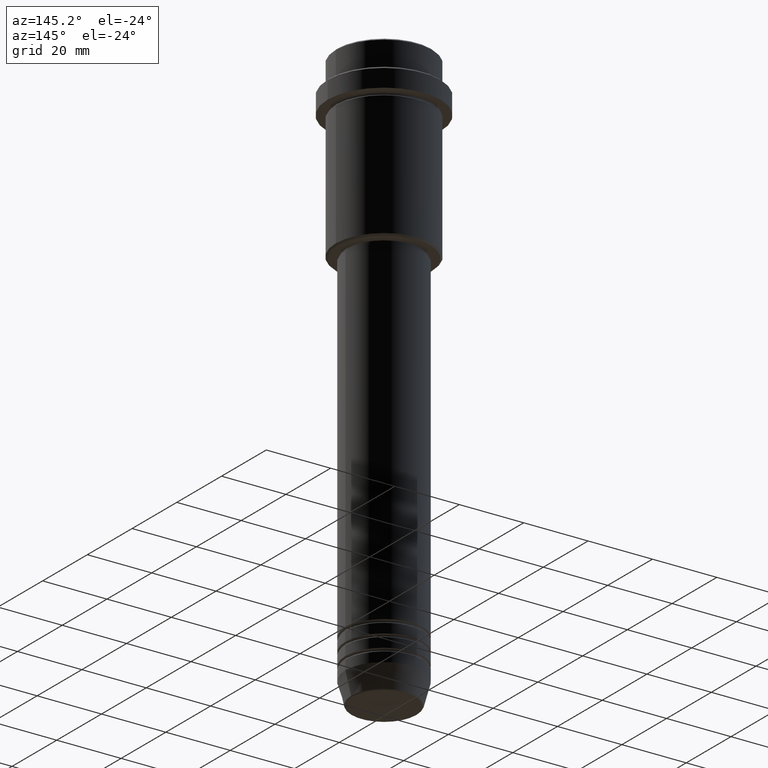
[diagram: clean part render]
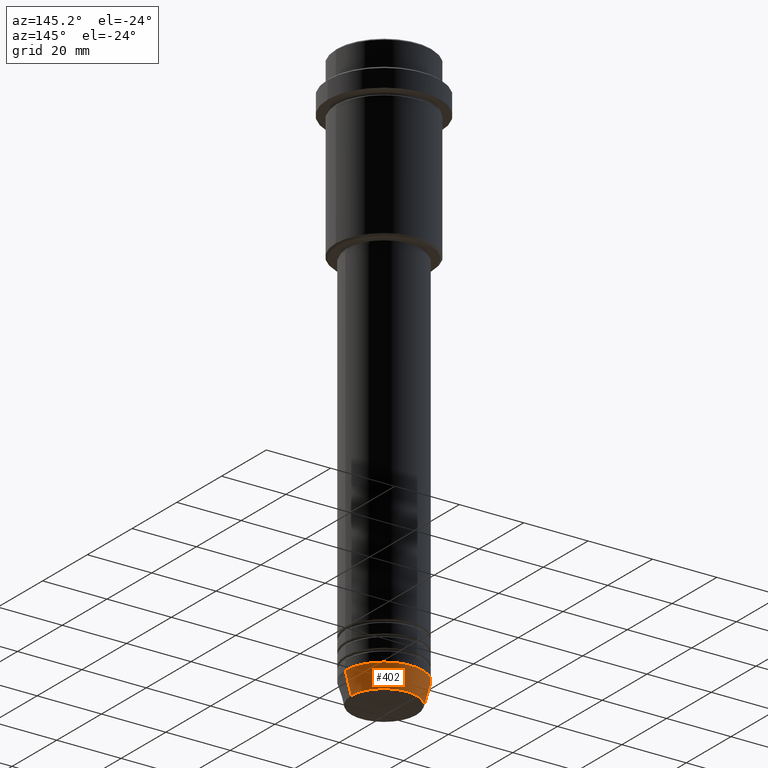
[diagram: same view with one face highlighted and labeled with its STEP entity id]
A machine part, auxiliary view. The second image highlights one B-rep face of the part: STEP entity #402.
In plain terms, the highlighted conical surface has half-angle 15 deg.
Its self-contained STEP definition (entity closure, byte-faithful):
#15 = DIRECTION ( 'NONE',  ( 1.000000000000000000, 0.000000000000000000, 0.000000000000000000 ) ) ;
#108 = LINE ( 'NONE', #983, #1020 ) ;
#127 = CARTESIAN_POINT ( 'NONE',  ( -12.00000000000000000, 1.469576158976823947E-15, -173.0000000000000000 ) ) ;
#183 = CIRCLE ( 'NONE', #370, 12.00000000000000000 ) ;
#221 = EDGE_LOOP ( 'NONE', ( #747, #731, #1158, #525 ) ) ;
#336 = DIRECTION ( 'NONE',  ( -0.000000000000000000, -0.000000000000000000, 1.000000000000000000 ) ) ;
#349 = CARTESIAN_POINT ( 'NONE',  ( 12.00000000000000000, 0.000000000000000000, -173.0000000000000000 ) ) ;
#370 = AXIS2_PLACEMENT_3D ( 'NONE', #562, #336, #15 ) ;
#373 = CARTESIAN_POINT ( 'NONE',  ( 10.22365507213719127, 0.000000000000000000, -179.6294095225512422 ) ) ;
#402 = ADVANCED_FACE ( 'NONE', ( #538 ), #1403, .T. ) ;
#412 = DIRECTION ( 'NONE',  ( -0.2588190451025213501, 3.169619151431772337E-17, 0.9659258262890680902 ) ) ;
#449 = EDGE_CURVE ( 'NONE', #1226, #545, #108, .T. ) ;
#525 = ORIENTED_EDGE ( 'NONE', *, *, #631, .F. ) ;
#538 = FACE_OUTER_BOUND ( 'NONE', #221, .T. ) ;
#541 = VERTEX_POINT ( 'NONE', #1028 ) ;
#543 = DIRECTION ( 'NONE',  ( 1.000000000000000000, 0.000000000000000000, 0.000000000000000000 ) ) ;
#545 = VERTEX_POINT ( 'NONE', #127 ) ;
#562 = CARTESIAN_POINT ( 'NONE',  ( 0.000000000000000000, 0.000000000000000000, -173.0000000000000000 ) ) ;
#565 = LINE ( 'NONE', #349, #1128 ) ;
#631 = EDGE_CURVE ( 'NONE', #1258, #541, #565, .T. ) ;
#652 = CARTESIAN_POINT ( 'NONE',  ( 0.000000000000000000, 0.000000000000000000, -173.0000000000000000 ) ) ;
#731 = ORIENTED_EDGE ( 'NONE', *, *, #449, .T. ) ;
#747 = ORIENTED_EDGE ( 'NONE', *, *, #1254, .T. ) ;
#796 = CARTESIAN_POINT ( 'NONE',  ( 0.000000000000000000, 0.000000000000000000, -179.6294095225512422 ) ) ;
#838 = EDGE_CURVE ( 'NONE', #541, #545, #183, .T. ) ;
#898 = CARTESIAN_POINT ( 'NONE',  ( -10.22365507213719127, 1.360806402472382744E-15, -179.6294095225512422 ) ) ;
#983 = CARTESIAN_POINT ( 'NONE',  ( -12.00000000000000000, 1.469576158976823947E-15, -173.0000000000000000 ) ) ;
#1020 = VECTOR ( 'NONE', #412, 1000.000000000000000 ) ;
#1028 = CARTESIAN_POINT ( 'NONE',  ( 12.00000000000000000, 0.000000000000000000, -173.0000000000000000 ) ) ;
#1033 = DIRECTION ( 'NONE',  ( 0.2588190451025213501, 0.000000000000000000, 0.9659258262890680902 ) ) ;
#1070 = CIRCLE ( 'NONE', #1160, 10.22365507213719127 ) ;
#1128 = VECTOR ( 'NONE', #1033, 1000.000000000000000 ) ;
#1158 = ORIENTED_EDGE ( 'NONE', *, *, #838, .F. ) ;
#1160 = AXIS2_PLACEMENT_3D ( 'NONE', #796, #1224, #1328 ) ;
#1224 = DIRECTION ( 'NONE',  ( -0.000000000000000000, -0.000000000000000000, 1.000000000000000000 ) ) ;
#1226 = VERTEX_POINT ( 'NONE', #898 ) ;
#1254 = EDGE_CURVE ( 'NONE', #1258, #1226, #1070, .T. ) ;
#1258 = VERTEX_POINT ( 'NONE', #373 ) ;
#1275 = DIRECTION ( 'NONE',  ( -0.000000000000000000, -0.000000000000000000, 1.000000000000000000 ) ) ;
#1328 = DIRECTION ( 'NONE',  ( 1.000000000000000000, 0.000000000000000000, 0.000000000000000000 ) ) ;
#1335 = AXIS2_PLACEMENT_3D ( 'NONE', #652, #1275, #543 ) ;
#1403 = CONICAL_SURFACE ( 'NONE', #1335, 12.00000000000000000, 0.2617993877991500740 ) ;